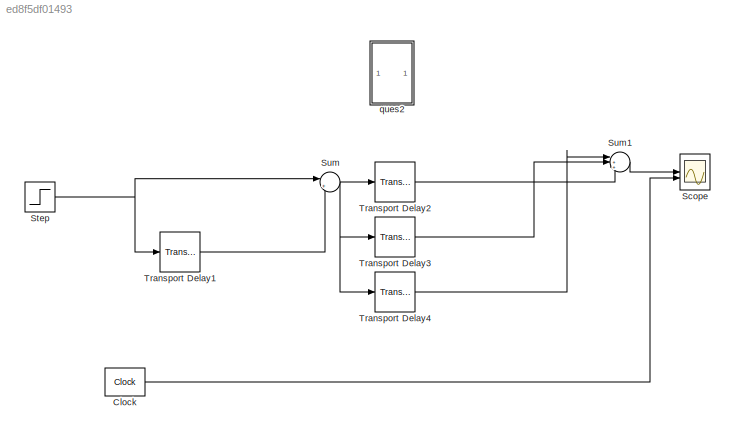
MODEL slx_ed8f5df01493
KIND model
CONFIG AbsTol = auto
CONFIG EnableMultiTasking = off
CONFIG FixedStep = auto
CONFIG MaxStep = auto
CONFIG MinStep = auto
CONFIG RelTol = 1e-3
CONFIG SampleTimeConstraint = Unconstrained
CONFIG SolverName = VariableStepAuto
CONFIG StartTime = 0.0
CONFIG StopTime = 20.0
BLOCK [Reference] Clock  REF=simulink_extras/Flip Flops/Clock
  SourceBlock = simulink_extras/Flip Flops/Clock
  SourceType = Digital clock
BLOCK [Scope] Scope
  Floating = off
  NumInputPorts = 2
  ScopeSpecificationString = Simulink.scopes.TimeScopeBlockCfg('CurrentConfiguration', extmgr.ConfigurationSet(extmgr.Configuration('Core','General UI',true),extmgr.Configuration('Core','Source UI',true),extmgr.Configuration('Sources','WiredSimulink',true,'DataLoggingVariableName','ScopeData1'),extmgr.Configuration('Visuals','Time Domain',true,'SerializedDisplays',{struct('MinYLimReal','-0.125','MaxYLimReal','1.125','YLabelRe...<+2204ch>
BLOCK [Step] Step
  SampleTime = 0
BLOCK [Sum] Sum
  Inputs = |+-
BLOCK [Sum] Sum1
  Inputs = |+++
BLOCK [TransportDelay] Transport Delay1
BLOCK [TransportDelay] Transport Delay2
  DelayTime = 11
BLOCK [TransportDelay] Transport Delay3
  DelayTime = 15
BLOCK [TransportDelay] Transport Delay4
  DelayTime = 7
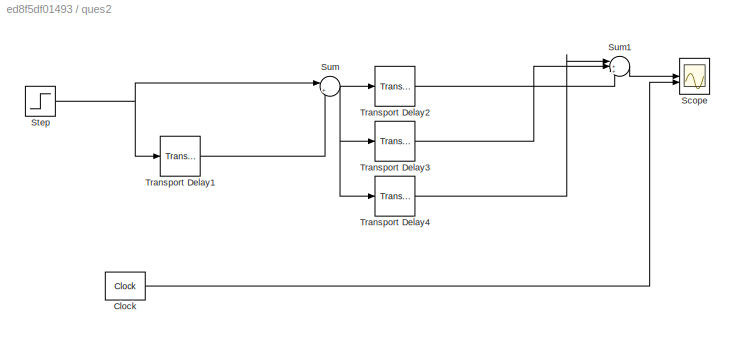
BLOCK [SubSystem] ques2
BLOCK [Reference] ques2/Clock  REF=simulink_extras/Flip Flops/Clock
  SourceBlock = simulink_extras/Flip Flops/Clock
  SourceType = Digital clock
BLOCK [Scope] ques2/Scope
  Floating = off
  NumInputPorts = 2
  ScopeSpecificationString = Simulink.scopes.TimeScopeBlockCfg('CurrentConfiguration', extmgr.ConfigurationSet(extmgr.Configuration('Core','General UI',true),extmgr.Configuration('Core','Source UI',true),extmgr.Configuration('Sources','WiredSimulink',true),extmgr.Configuration('Visuals','Time Domain',true,'SerializedDisplays',{struct('MinYLimReal','-0.125','MaxYLimReal','1.125','YLabelReal','','MinYLimMag','0.00000','MaxYLimM...<+2165ch>
BLOCK [Step] ques2/Step
  SampleTime = 0
BLOCK [Sum] ques2/Sum
  Inputs = |+-
BLOCK [Sum] ques2/Sum1
  Inputs = |+++
BLOCK [TransportDelay] ques2/Transport Delay1
BLOCK [TransportDelay] ques2/Transport Delay2
  DelayTime = 11
BLOCK [TransportDelay] ques2/Transport Delay3
  DelayTime = 15
BLOCK [TransportDelay] ques2/Transport Delay4
  DelayTime = 7
LINE Clock:1 -> Scope:2
NET Step:1 -> Sum:1, Transport Delay1:1
LINE Sum1:1 -> Scope:1
NET Sum:1 -> Transport Delay2:1, Transport Delay3:1, Transport Delay4:1
LINE Transport Delay1:1 -> Sum:2
LINE Transport Delay2:1 -> Sum1:3
LINE Transport Delay3:1 -> Sum1:2
LINE Transport Delay4:1 -> Sum1:1
LINE ques2/Clock:1 -> ques2/Scope:2
NET ques2/Step:1 -> ques2/Sum:1, ques2/Transport Delay1:1
LINE ques2/Sum1:1 -> ques2/Scope:1
NET ques2/Sum:1 -> ques2/Transport Delay2:1, ques2/Transport Delay3:1, ques2/Transport Delay4:1
LINE ques2/Transport Delay1:1 -> ques2/Sum:2
LINE ques2/Transport Delay2:1 -> ques2/Sum1:3
LINE ques2/Transport Delay3:1 -> ques2/Sum1:2
LINE ques2/Transport Delay4:1 -> ques2/Sum1:1
note: NET lines group one-source signal fan-out (src -> all destinations, sorted); 1:1 wires keep LINE
